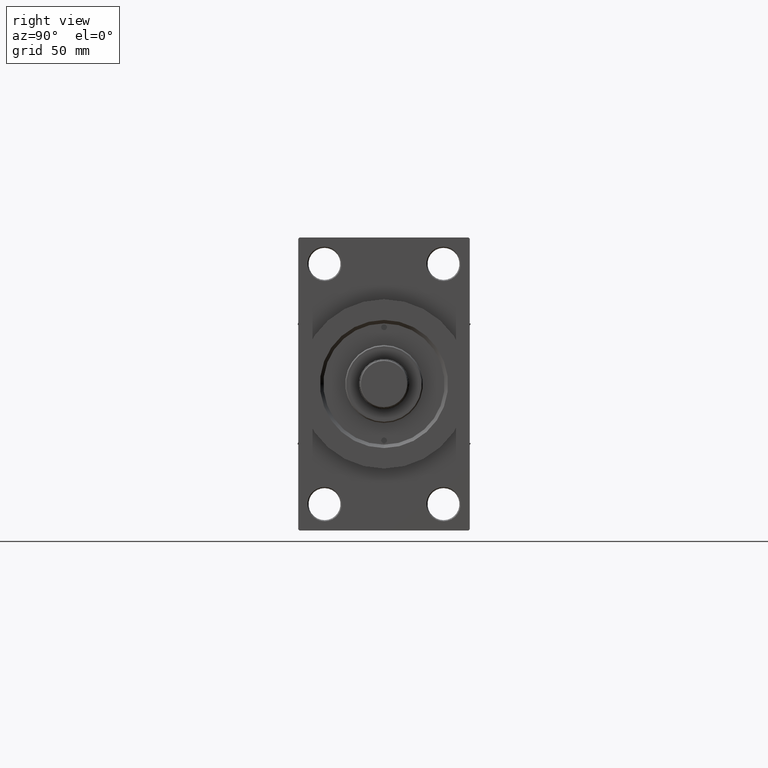
[diagram: clean part render]
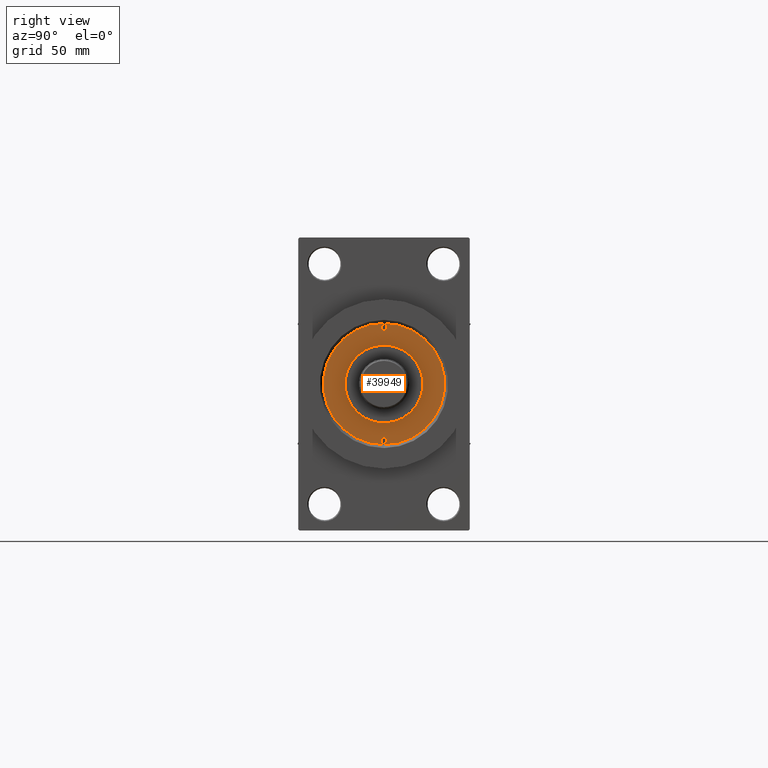
[diagram: same view with one face highlighted and labeled with its STEP entity id]
A machine part, right view. The second image highlights one B-rep face of the part: STEP entity #39949.
In plain terms, the highlighted planar face has unit normal (1, -0, -0).
Its self-contained STEP definition (entity closure, byte-faithful):
#651 = DIRECTION ( 'NONE',  ( -0.000000000000000000, -0.000000000000000000, 1.000000000000000000 ) ) ;
#2372 = AXIS2_PLACEMENT_3D ( 'NONE', #15585, #12664, #45801 ) ;
#2450 = ORIENTED_EDGE ( 'NONE', *, *, #24560, .T. ) ;
#2679 = VERTEX_POINT ( 'NONE', #14922 ) ;
#3935 = ORIENTED_EDGE ( 'NONE', *, *, #5092, .F. ) ;
#4059 = AXIS2_PLACEMENT_3D ( 'NONE', #10798, #36653, #44156 ) ;
#5092 = EDGE_CURVE ( 'NONE', #2679, #19908, #7930, .T. ) ;
#5881 = DIRECTION ( 'NONE',  ( 0.000000000000000000, 0.000000000000000000, 1.000000000000000000 ) ) ;
#5937 = VERTEX_POINT ( 'NONE', #13094 ) ;
#6236 = DIRECTION ( 'NONE',  ( 0.000000000000000000, 0.000000000000000000, 1.000000000000000000 ) ) ;
#6415 = ORIENTED_EDGE ( 'NONE', *, *, #35890, .F. ) ;
#6944 = FACE_BOUND ( 'NONE', #41835, .T. ) ;
#7930 = CIRCLE ( 'NONE', #4059, 17.00000000000000000 ) ;
#8184 = DIRECTION ( 'NONE',  ( 1.000000000000000000, 0.000000000000000000, 0.000000000000000000 ) ) ;
#8529 = AXIS2_PLACEMENT_3D ( 'NONE', #27640, #39224, #35363 ) ;
#10798 = CARTESIAN_POINT ( 'NONE',  ( 0.000000000000000000, 0.000000000000000000, 43.25999999999999801 ) ) ;
#12046 = CIRCLE ( 'NONE', #15104, 26.50000000000000355 ) ;
#12200 = CARTESIAN_POINT ( 'NONE',  ( -26.00000000000000000, 1.530808498934188612E-16, 43.25999999999999801 ) ) ;
#12664 = DIRECTION ( 'NONE',  ( -0.000000000000000000, -0.000000000000000000, 1.000000000000000000 ) ) ;
#13094 = CARTESIAN_POINT ( 'NONE',  ( -23.50000000000000355, 0.000000000000000000, 43.25999999999999801 ) ) ;
#14403 = DIRECTION ( 'NONE',  ( 1.000000000000000000, 0.000000000000000000, -0.000000000000000000 ) ) ;
#14675 = CIRCLE ( 'NONE', #45586, 26.50000000000000355 ) ;
#14922 = CARTESIAN_POINT ( 'NONE',  ( -17.00000000000000000, 0.000000000000000000, 43.25999999999999801 ) ) ;
#15104 = AXIS2_PLACEMENT_3D ( 'NONE', #38270, #5881, #20149 ) ;
#15427 = CARTESIAN_POINT ( 'NONE',  ( -24.75000000000000000, 0.000000000000000000, 43.25999999999999801 ) ) ;
#15585 = CARTESIAN_POINT ( 'NONE',  ( -24.75000000000000000, 0.000000000000000000, 43.25999999999999801 ) ) ;
#16148 = DIRECTION ( 'NONE',  ( -0.000000000000000000, -0.000000000000000000, 1.000000000000000000 ) ) ;
#16361 = DIRECTION ( 'NONE',  ( 1.000000000000000000, 0.000000000000000000, 0.000000000000000000 ) ) ;
#16559 = CARTESIAN_POINT ( 'NONE',  ( 17.00000000000000000, 2.081899558550500280E-15, 43.25999999999999801 ) ) ;
#17309 = DIRECTION ( 'NONE',  ( 0.000000000000000000, 0.000000000000000000, 1.000000000000000000 ) ) ;
#17545 = DIRECTION ( 'NONE',  ( 1.000000000000000000, 0.000000000000000000, 0.000000000000000000 ) ) ;
#17573 = EDGE_CURVE ( 'NONE', #24879, #27510, #12046, .T. ) ;
#17817 = FACE_BOUND ( 'NONE', #18191, .T. ) ;
#18069 = CARTESIAN_POINT ( 'NONE',  ( 23.50000000000000355, 1.530808498934188612E-16, 43.25999999999999801 ) ) ;
#18191 = EDGE_LOOP ( 'NONE', ( #3935, #25308 ) ) ;
#18260 = AXIS2_PLACEMENT_3D ( 'NONE', #19992, #651, #16361 ) ;
#19847 = VERTEX_POINT ( 'NONE', #12200 ) ;
#19908 = VERTEX_POINT ( 'NONE', #16559 ) ;
#19992 = CARTESIAN_POINT ( 'NONE',  ( 24.75000000000000000, 0.000000000000000000, 43.25999999999999801 ) ) ;
#20037 = CIRCLE ( 'NONE', #45500, 1.249999999999997558 ) ;
#20149 = DIRECTION ( 'NONE',  ( 1.000000000000000000, 0.000000000000000000, 0.000000000000000000 ) ) ;
#21644 = CIRCLE ( 'NONE', #25505, 1.249999999999997558 ) ;
#22506 = CARTESIAN_POINT ( 'NONE',  ( 26.50000000000000355, 3.245314017740486554E-15, 43.25999999999999801 ) ) ;
#22652 = AXIS2_PLACEMENT_3D ( 'NONE', #32561, #6236, #14403 ) ;
#23227 = CIRCLE ( 'NONE', #2372, 1.249999999999997558 ) ;
#24227 = EDGE_CURVE ( 'NONE', #19908, #2679, #28598, .T. ) ;
#24560 = EDGE_CURVE ( 'NONE', #27510, #24879, #14675, .T. ) ;
#24879 = VERTEX_POINT ( 'NONE', #37999 ) ;
#25308 = ORIENTED_EDGE ( 'NONE', *, *, #24227, .F. ) ;
#25505 = AXIS2_PLACEMENT_3D ( 'NONE', #15427, #16148, #8184 ) ;
#25610 = EDGE_LOOP ( 'NONE', ( #42306, #41735 ) ) ;
#25624 = EDGE_CURVE ( 'NONE', #5937, #19847, #23227, .T. ) ;
#26858 = ORIENTED_EDGE ( 'NONE', *, *, #25624, .F. ) ;
#27510 = VERTEX_POINT ( 'NONE', #22506 ) ;
#27640 = CARTESIAN_POINT ( 'NONE',  ( 0.000000000000000000, 0.000000000000000000, 43.25999999999999801 ) ) ;
#28598 = CIRCLE ( 'NONE', #8529, 17.00000000000000000 ) ;
#28933 = FACE_OUTER_BOUND ( 'NONE', #45845, .T. ) ;
#29058 = VERTEX_POINT ( 'NONE', #36422 ) ;
#32561 = CARTESIAN_POINT ( 'NONE',  ( 0.000000000000000000, 0.000000000000000000, 43.25999999999999801 ) ) ;
#35363 = DIRECTION ( 'NONE',  ( 1.000000000000000000, 0.000000000000000000, 0.000000000000000000 ) ) ;
#35890 = EDGE_CURVE ( 'NONE', #19847, #5937, #21644, .T. ) ;
#36038 = DIRECTION ( 'NONE',  ( 1.000000000000000000, 0.000000000000000000, 0.000000000000000000 ) ) ;
#36422 = CARTESIAN_POINT ( 'NONE',  ( 26.00000000000000000, 0.000000000000000000, 43.25999999999999801 ) ) ;
#36653 = DIRECTION ( 'NONE',  ( 0.000000000000000000, 0.000000000000000000, 1.000000000000000000 ) ) ;
#37999 = CARTESIAN_POINT ( 'NONE',  ( -26.50000000000000355, 0.000000000000000000, 43.25999999999999801 ) ) ;
#38270 = CARTESIAN_POINT ( 'NONE',  ( 0.000000000000000000, 0.000000000000000000, 43.25999999999999801 ) ) ;
#39096 = CIRCLE ( 'NONE', #18260, 1.249999999999997558 ) ;
#39224 = DIRECTION ( 'NONE',  ( 0.000000000000000000, 0.000000000000000000, 1.000000000000000000 ) ) ;
#39326 = PLANE ( 'NONE',  #22652 ) ;
#39431 = CARTESIAN_POINT ( 'NONE',  ( 24.75000000000000000, 0.000000000000000000, 43.25999999999999801 ) ) ;
#39949 = ADVANCED_FACE ( 'NONE', ( #6944, #43198, #17817, #28933 ), #39326, .T. ) ;
#41217 = VERTEX_POINT ( 'NONE', #18069 ) ;
#41735 = ORIENTED_EDGE ( 'NONE', *, *, #46800, .F. ) ;
#41758 = ORIENTED_EDGE ( 'NONE', *, *, #17573, .T. ) ;
#41835 = EDGE_LOOP ( 'NONE', ( #26858, #6415 ) ) ;
#42306 = ORIENTED_EDGE ( 'NONE', *, *, #43372, .F. ) ;
#43198 = FACE_BOUND ( 'NONE', #25610, .T. ) ;
#43372 = EDGE_CURVE ( 'NONE', #29058, #41217, #39096, .T. ) ;
#44156 = DIRECTION ( 'NONE',  ( 1.000000000000000000, 0.000000000000000000, 0.000000000000000000 ) ) ;
#45500 = AXIS2_PLACEMENT_3D ( 'NONE', #39431, #47648, #36038 ) ;
#45586 = AXIS2_PLACEMENT_3D ( 'NONE', #46338, #17309, #17545 ) ;
#45801 = DIRECTION ( 'NONE',  ( 1.000000000000000000, 0.000000000000000000, 0.000000000000000000 ) ) ;
#45845 = EDGE_LOOP ( 'NONE', ( #41758, #2450 ) ) ;
#46338 = CARTESIAN_POINT ( 'NONE',  ( 0.000000000000000000, 0.000000000000000000, 43.25999999999999801 ) ) ;
#46800 = EDGE_CURVE ( 'NONE', #41217, #29058, #20037, .T. ) ;
#47648 = DIRECTION ( 'NONE',  ( -0.000000000000000000, -0.000000000000000000, 1.000000000000000000 ) ) ;